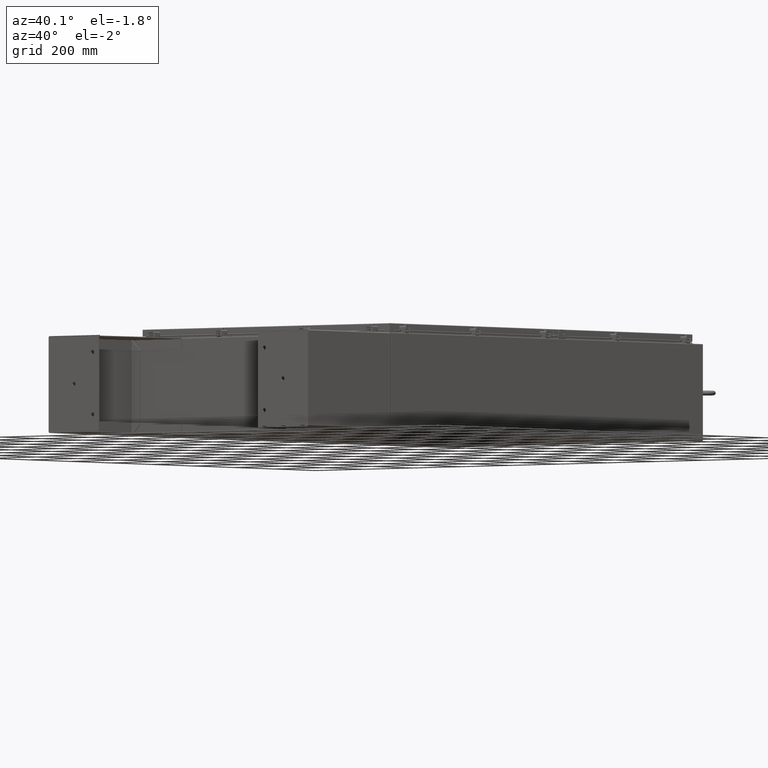
[diagram: clean part render]
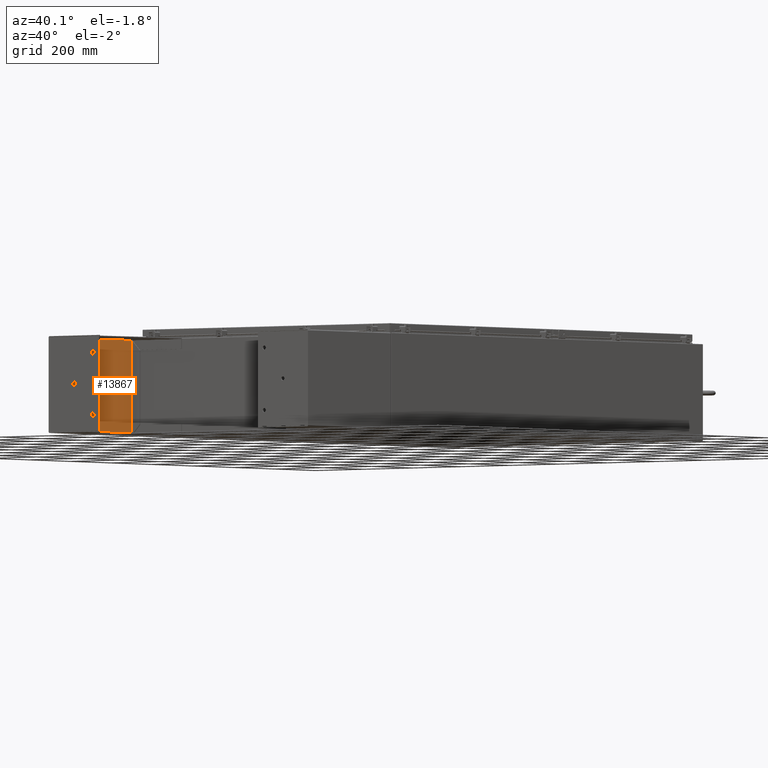
[diagram: same view with one face highlighted and labeled with its STEP entity id]
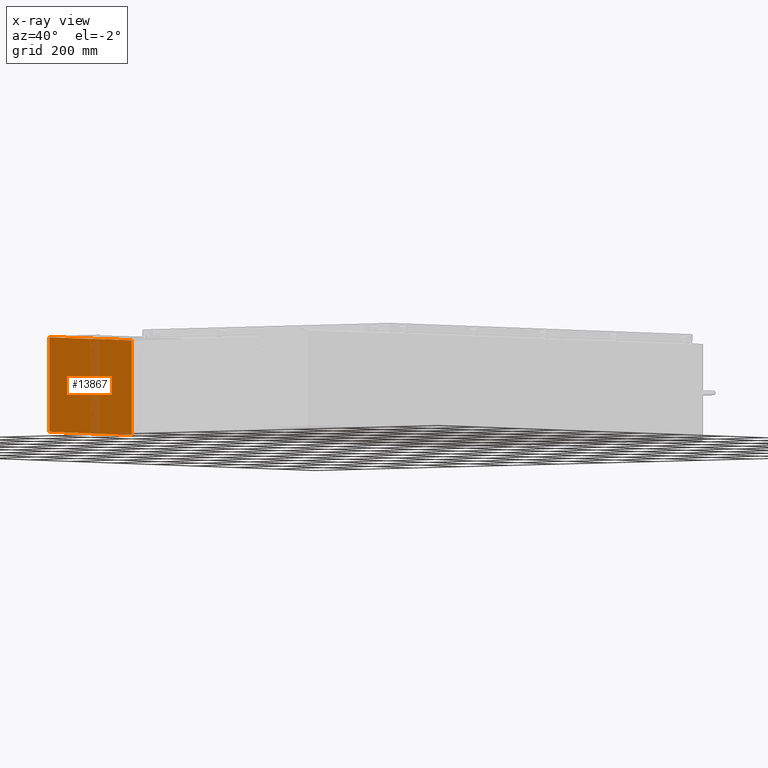
[diagram: x-ray of the same camera — body ghosted, the highlighted face saturated]
A machine part, auxiliary view. The second image highlights one B-rep face of the part: STEP entity #13867.
The next image is the same camera in x-ray: the body ghosted, the highlighted face saturated — about 11% of this face is hidden behind the body in this view.
In plain terms, the highlighted planar face has unit normal (-1, 0, -0).
Its self-contained STEP definition (entity closure, byte-faithful):
#2029 = LINE ( 'NONE', #3725, #29927 ) ;
#2928 = PLANE ( 'NONE',  #66378 ) ;
#3725 = CARTESIAN_POINT ( 'NONE',  ( -6.000000000000000900, -7.999999999999999100, 0.0000000000000000000 ) ) ;
#5711 = CARTESIAN_POINT ( 'NONE',  ( 5.999999999999996400, 8.000000000000001800, 0.0000000000000000000 ) ) ;
#8251 = LINE ( 'NONE', #22299, #62349 ) ;
#9381 = EDGE_CURVE ( 'NONE', #40708, #11652, #8251, .T. ) ;
#9513 = VERTEX_POINT ( 'NONE', #23071 ) ;
#9726 = FACE_OUTER_BOUND ( 'NONE', #41658, .T. ) ;
#11652 = VERTEX_POINT ( 'NONE', #51898 ) ;
#12839 = ORIENTED_EDGE ( 'NONE', *, *, #36435, .F. ) ;
#13867 = ADVANCED_FACE ( 'NONE', ( #9726 ), #2928, .F. ) ;
#18677 = DIRECTION ( 'NONE',  ( -1.000000000000000000, 0.0000000000000000000, -0.0000000000000000000 ) ) ;
#21833 = DIRECTION ( 'NONE',  ( -0.0000000000000000000, -1.000000000000000000, -0.0000000000000000000 ) ) ;
#22299 = CARTESIAN_POINT ( 'NONE',  ( 5.857000000000000200, 8.000000000000001800, 1.365923996832131600E-016 ) ) ;
#23071 = CARTESIAN_POINT ( 'NONE',  ( -5.857000000000000200, -8.000000000000000000, 1.365923996832131600E-016 ) ) ;
#23074 = ORIENTED_EDGE ( 'NONE', *, *, #41806, .T. ) ;
#26496 = DIRECTION ( 'NONE',  ( 1.000000000000000000, 0.0000000000000000000, 0.0000000000000000000 ) ) ;
#29927 = VECTOR ( 'NONE', #40424, 39.37007874015748100 ) ;
#29994 = DIRECTION ( 'NONE',  ( 0.0000000000000000000, 0.0000000000000000000, -1.000000000000000000 ) ) ;
#30340 = VERTEX_POINT ( 'NONE', #36626 ) ;
#33027 = EDGE_CURVE ( 'NONE', #9513, #30340, #57177, .T. ) ;
#36435 = EDGE_CURVE ( 'NONE', #30340, #40708, #55883, .T. ) ;
#36626 = CARTESIAN_POINT ( 'NONE',  ( -5.857000000000000200, 7.857000000000001100, 1.365923996832131600E-016 ) ) ;
#40424 = DIRECTION ( 'NONE',  ( 1.000000000000000000, 0.0000000000000000000, 0.0000000000000000000 ) ) ;
#40708 = VERTEX_POINT ( 'NONE', #46019 ) ;
#41658 = EDGE_LOOP ( 'NONE', ( #12839, #61603, #23074, #59067 ) ) ;
#41806 = EDGE_CURVE ( 'NONE', #9513, #11652, #2029, .T. ) ;
#41946 = VECTOR ( 'NONE', #26496, 39.37007874015748100 ) ;
#46019 = CARTESIAN_POINT ( 'NONE',  ( 5.857000000000000200, 7.857000000000001100, 1.365923996832131600E-016 ) ) ;
#47801 = DIRECTION ( 'NONE',  ( -0.0000000000000000000, 1.000000000000000000, -0.0000000000000000000 ) ) ;
#51898 = CARTESIAN_POINT ( 'NONE',  ( 5.857000000000000200, -7.999999999999997300, 1.365923996832131600E-016 ) ) ;
#55883 = LINE ( 'NONE', #57560, #41946 ) ;
#57177 = LINE ( 'NONE', #58300, #67779 ) ;
#57560 = CARTESIAN_POINT ( 'NONE',  ( -5.857000000000000200, 7.857000000000001100, 1.365923996832131600E-016 ) ) ;
#58300 = CARTESIAN_POINT ( 'NONE',  ( -5.857000000000000200, -7.999999999999999100, 1.365923996832131600E-016 ) ) ;
#59067 = ORIENTED_EDGE ( 'NONE', *, *, #9381, .F. ) ;
#61603 = ORIENTED_EDGE ( 'NONE', *, *, #33027, .F. ) ;
#62349 = VECTOR ( 'NONE', #21833, 39.37007874015748100 ) ;
#66378 = AXIS2_PLACEMENT_3D ( 'NONE', #5711, #29994, #18677 ) ;
#67779 = VECTOR ( 'NONE', #47801, 39.37007874015748100 ) ;